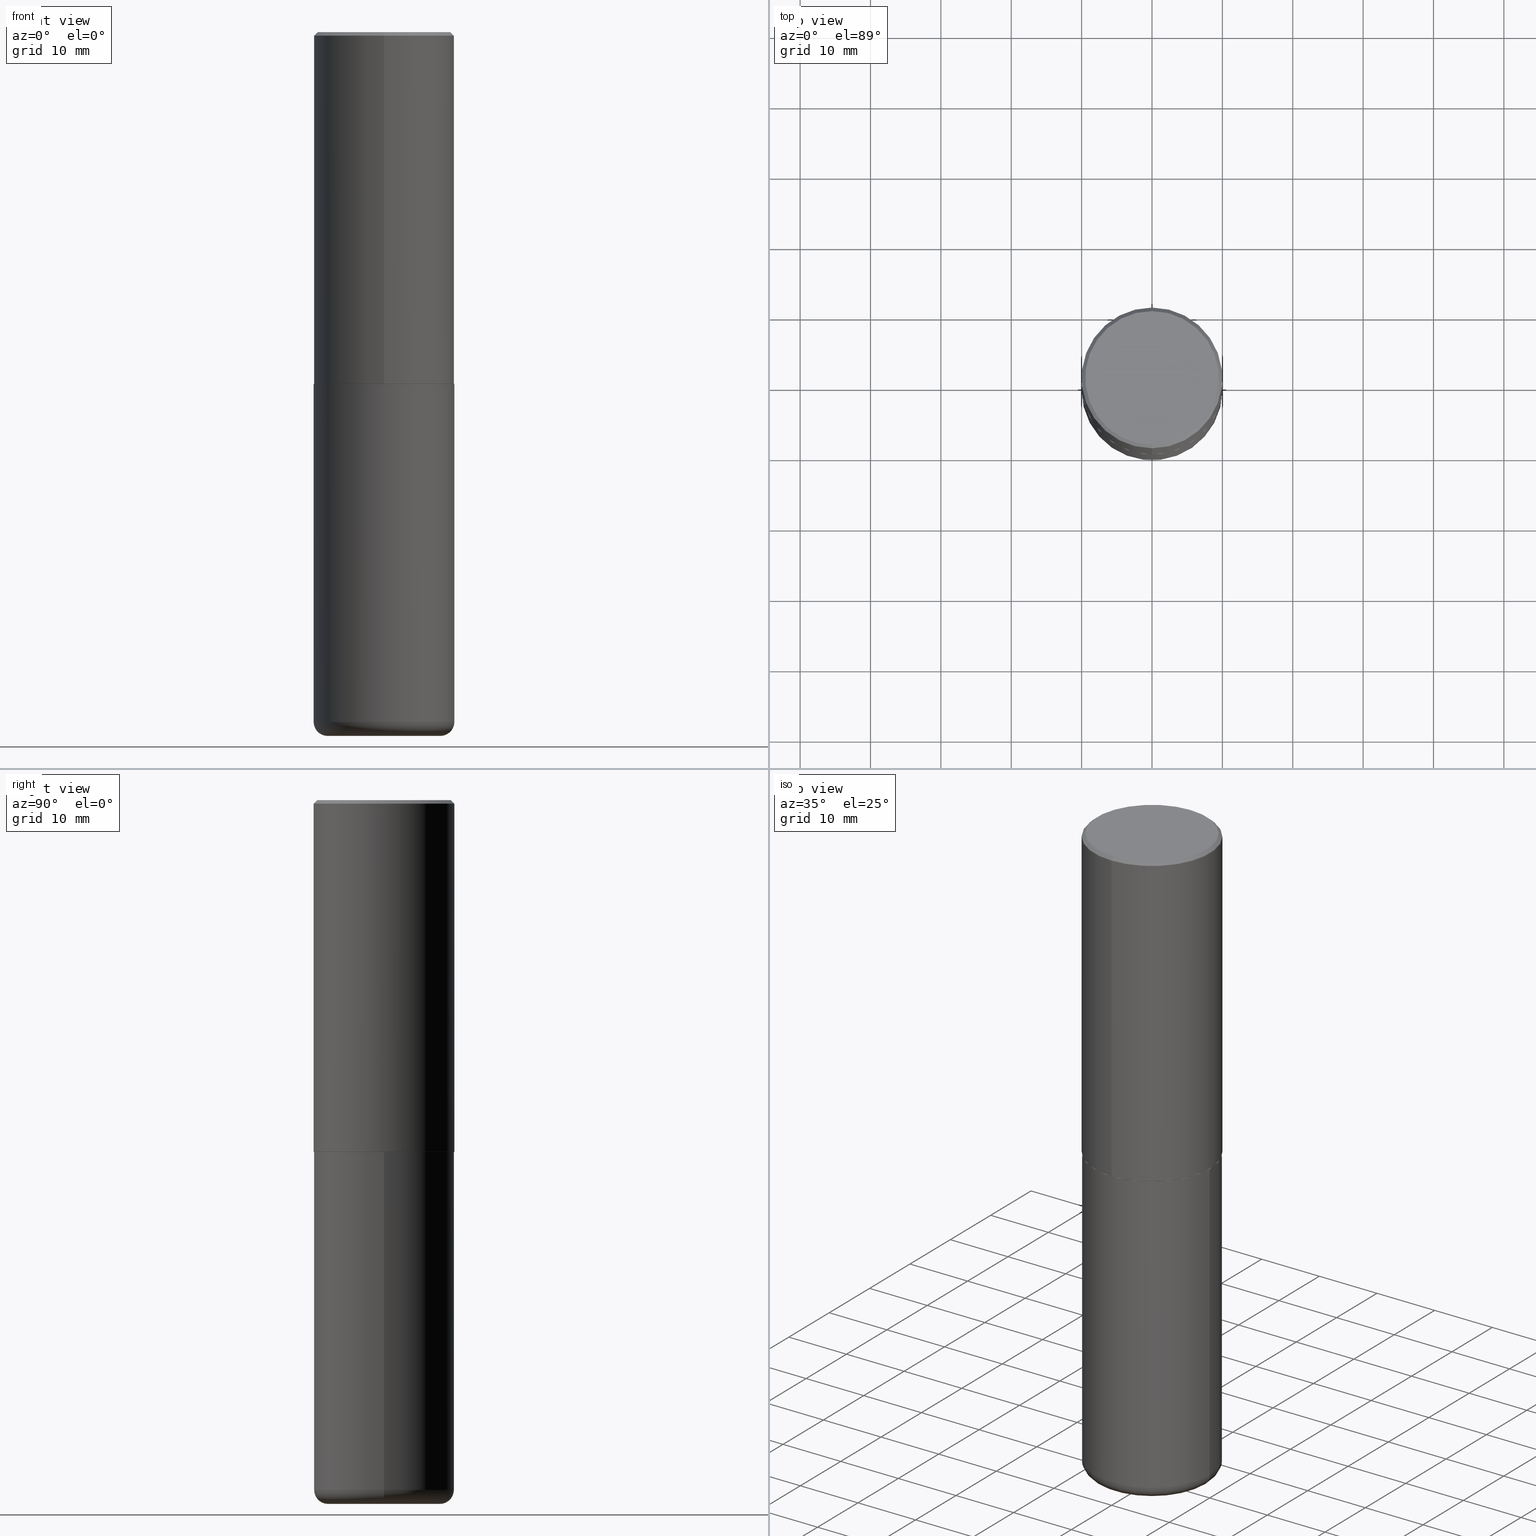
[diagram: canonical four-view strip — front | top / right | iso, engineering-drawing reading convention]
A machine part, canonical four-view strip (front | top / right | iso — engineering-drawing reading convention). The complete STEP part file that produces these views, byte-faithful:
ISO-10303-21;
HEADER;
FILE_DESCRIPTION (( 'STEP AP203' ),
    '1' );
FILE_NAME ('74806.STEP',
    '2024-05-02T19:19:54',
    ( '' ),
    ( '' ),
    'SwSTEP 2.0',
    'SolidWorks 2023',
    '' );
FILE_SCHEMA (( 'CONFIG_CONTROL_DESIGN' ));
ENDSEC;

DATA;
#1 = AXIS2_PLACEMENT_3D ( 'NONE', #147, #344, #334 ) ;
#2 = AXIS2_PLACEMENT_3D ( 'NONE', #55, #203, #124 ) ;
#3 = ORIENTED_EDGE ( 'NONE', *, *, #69, .T. ) ;
#4 = ADVANCED_FACE ( 'NONE', ( #289 ), #265, .T. ) ;
#5 = EDGE_LOOP ( 'NONE', ( #179, #266, #99, #355 ) ) ;
#6 = CLOSED_SHELL ( 'NONE', ( #103, #352, #92, #35, #201, #4, #136, #300 ) ) ;
#7 = ORIENTED_EDGE ( 'NONE', *, *, #269, .F. ) ;
#8 =( NAMED_UNIT ( * ) PLANE_ANGLE_UNIT ( ) SI_UNIT ( $, .RADIAN. ) );
#9 = VERTEX_POINT ( 'NONE', #418 ) ;
#10 = EDGE_CURVE ( 'NONE', #351, #43, #135, .T. ) ;
#11 = VERTEX_POINT ( 'NONE', #263 ) ;
#12 = DIRECTION ( 'NONE',  ( 2.447902336346030930E-29, -3.487996385144809360E-15, -1.000000000000000000 ) ) ;
#13 = CARTESIAN_POINT ( 'NONE',  ( -2.742209443527348687E-15, -0.3927000000000069324, -1.968499999999998584 ) ) ;
#14 = DIRECTION ( 'NONE',  ( -2.447902336346030930E-29, 3.487996385144809755E-15, 1.000000000000000000 ) ) ;
#15 = DIRECTION ( 'NONE',  ( -2.447902336346030930E-29, 3.487996385144809755E-15, 1.000000000000000000 ) ) ;
#16 = PLANE ( 'NONE',  #98 ) ;
#17 = PLANE ( 'NONE',  #359 ) ;
#18 = DIRECTION ( 'NONE',  ( -2.447902336346030930E-29, 3.487996385144809755E-15, 1.000000000000000000 ) ) ;
#19 = AXIS2_PLACEMENT_3D ( 'NONE', #342, #243, #49 ) ;
#20 = DIRECTION ( 'NONE',  ( 2.438088387897960049E-29, -3.491481338843145188E-15, -1.000000000000000000 ) ) ;
#21 = DIRECTION ( 'NONE',  ( -6.982962677686265922E-15, -1.000000000000000000, 3.487996385144809360E-15 ) ) ;
#22 = COORDINATED_UNIVERSAL_TIME_OFFSET ( 5, 0, .BEHIND. ) ;
#23 = DIRECTION ( 'NONE',  ( -2.445468806185136597E-29, 3.491481338843145583E-15, 1.000000000000000000 ) ) ;
#24 = APPROVAL_STATUS ( 'not_yet_approved' ) ;
#25 = AXIS2_PLACEMENT_3D ( 'NONE', #343, #244, #80 ) ;
#26 = APPROVAL_DATE_TIME ( #286, #233 ) ;
#27 = APPLICATION_PROTOCOL_DEFINITION ( 'international standard', 'config_control_design', 1994, #356 ) ;
#28 = COORDINATED_UNIVERSAL_TIME_OFFSET ( 5, 0, .BEHIND. ) ;
#29 = VECTOR ( 'NONE', #195, 39.37007874015748143 ) ;
#30 = ORIENTED_EDGE ( 'NONE', *, *, #229, .F. ) ;
#31 = EDGE_CURVE ( 'NONE', #399, #339, #192, .T. ) ;
#32 = ORIENTED_EDGE ( 'NONE', *, *, #254, .T. ) ;
#33 = AXIS2_PLACEMENT_3D ( 'NONE', #304, #108, #171 ) ;
#34 = LOCAL_TIME ( 15, 19, 54.00000000000000000, #22 ) ;
#35 = ADVANCED_FACE ( 'NONE', ( #182 ), #62, .T. ) ;
#36 = AXIS2_PLACEMENT_3D ( 'NONE', #38, #252, #235 ) ;
#37 = CARTESIAN_POINT ( 'NONE',  ( 4.895804672692082949E-31, -6.975992770289649092E-17, -0.02000000000000008715 ) ) ;
#38 = CARTESIAN_POINT ( 'NONE',  ( 4.895804672692082949E-31, -6.975992770289649092E-17, -0.02000000000000008715 ) ) ;
#39 = DIRECTION ( 'NONE',  ( 1.000000000000000000, -6.982962677686265922E-15, 4.876176775795935793E-29 ) ) ;
#40 = VERTEX_POINT ( 'NONE', #409 ) ;
#41 = LOCAL_TIME ( 15, 19, 54.00000000000000000, #28 ) ;
#42 = DIRECTION ( 'NONE',  ( -4.851104656540950075E-15, -0.7071067811865479058, -0.7071067811865471286 ) ) ;
#43 = VERTEX_POINT ( 'NONE', #407 ) ;
#44 = AXIS2_PLACEMENT_3D ( 'NONE', #109, #401, #114 ) ;
#45 = APPLICATION_CONTEXT ( 'configuration controlled 3d designs of mechanical parts and assemblies' ) ;
#46 = EDGE_CURVE ( 'NONE', #40, #43, #216, .T. ) ;
#47 = ORIENTED_EDGE ( 'NONE', *, *, #122, .T. ) ;
#48 = DIRECTION ( 'NONE',  ( -1.000000000000000000, 7.105427357601001859E-15, 0.000000000000000000 ) ) ;
#49 = DIRECTION ( 'NONE',  ( 1.000000000000000000, -6.982962677686265922E-15, 4.876176775795935793E-29 ) ) ;
#50 = CARTESIAN_POINT ( 'NONE',  ( 0.000000000000000000, 0.000000000000000000, 0.000000000000000000 ) ) ;
#51 = VERTEX_POINT ( 'NONE', #88 ) ;
#52 = CARTESIAN_POINT ( 'NONE',  ( -0.3150000000000000577, -1.123297283201419171E-14, -3.858300000000000285 ) ) ;
#53 = ORIENTED_EDGE ( 'NONE', *, *, #322, .T. ) ;
#54 = EDGE_CURVE ( 'NONE', #339, #399, #199, .T. ) ;
#55 = CARTESIAN_POINT ( 'NONE',  ( -5.506038201652776757E-45, 7.845509626213831500E-31, 2.249288347782537153E-16 ) ) ;
#56 = CARTESIAN_POINT ( 'NONE',  ( 4.813905344975441835E-29, -6.872981015512731707E-15, -1.968500000000000139 ) ) ;
#57 = COORDINATED_UNIVERSAL_TIME_OFFSET ( 5, 0, .BEHIND. ) ;
#58 = PRODUCT_DEFINITION_SHAPE ( 'NONE', 'NONE',  #316 ) ;
#59 = APPLICATION_PROTOCOL_DEFINITION ( 'international standard', 'config_control_design', 1994, #45 ) ;
#60 = DIRECTION ( 'NONE',  ( -2.445468806185136597E-29, 3.491481338843145583E-15, 1.000000000000000000 ) ) ;
#61 = MECHANICAL_CONTEXT ( 'NONE', #356, 'mechanical' ) ;
#62 = CONICAL_SURFACE ( 'NONE', #36, 0.3937000000000001054, 0.7853981633974453924 ) ;
#63 = EDGE_CURVE ( 'NONE', #260, #51, #276, .T. ) ;
#64 = VECTOR ( 'NONE', #145, 39.37007874015748143 ) ;
#65 = CALENDAR_DATE ( 2024, 2, 5 ) ;
#66 = PERSON_AND_ORGANIZATION ( #377, #198 ) ;
#67 = EDGE_LOOP ( 'NONE', ( #210, #143 ) ) ;
#68 = ORIENTED_EDGE ( 'NONE', *, *, #46, .F. ) ;
#69 = EDGE_CURVE ( 'NONE', #144, #364, #275, .T. ) ;
#70 = AXIS2_PLACEMENT_3D ( 'NONE', #100, #142, #270 ) ;
#71 = MANIFOLD_SOLID_BREP ( 'Body-Move/Copy2[1]', #328 ) ;
#72 = ORIENTED_EDGE ( 'NONE', *, *, #354, .T. ) ;
#73 = EDGE_CURVE ( 'NONE', #404, #9, #311, .T. ) ;
#74 = CIRCLE ( 'NONE', #174, 0.3937000000000002720 ) ;
#75 = AXIS2_PLACEMENT_3D ( 'NONE', #56, #23, #120 ) ;
#76 = EDGE_LOOP ( 'NONE', ( #336, #166, #47, #30 ) ) ;
#77 = DIRECTION ( 'NONE',  ( -2.447902336346030930E-29, 3.487996385144809755E-15, 1.000000000000000000 ) ) ;
#78 = LINE ( 'NONE', #13, #129 ) ;
#79 = EDGE_LOOP ( 'NONE', ( #333, #140 ) ) ;
#80 = DIRECTION ( 'NONE',  ( 1.000000000000000000, -6.982962677686267499E-15, 0.000000000000000000 ) ) ;
#81 = VECTOR ( 'NONE', #183, 39.37007874015748143 ) ;
#82 = EDGE_LOOP ( 'NONE', ( #238, #226, #337, #290 ) ) ;
#83 = DIRECTION ( 'NONE',  ( 1.000000000000000000, -6.982962677686267499E-15, 0.000000000000000000 ) ) ;
#84 = CARTESIAN_POINT ( 'NONE',  ( 4.895804672692082949E-31, -6.975992770289649092E-17, -0.02000000000000008715 ) ) ;
#85 = CARTESIAN_POINT ( 'NONE',  ( 2.790301323329961110E-15, 0.3926999999999931101, -1.968500000000001471 ) ) ;
#86 = CARTESIAN_POINT ( 'NONE',  ( 0.3150000000000000577, -1.594559527449663995E-14, -3.937000000000000721 ) ) ;
#87 = FACE_OUTER_BOUND ( 'NONE', #82, .T. ) ;
#88 = CARTESIAN_POINT ( 'NONE',  ( -0.3937000000000001054, -1.067377569897099292E-14, -3.858300000000000285 ) ) ;
#89 = SECURITY_CLASSIFICATION_LEVEL ( 'unclassified' ) ;
#90 = APPROVAL ( #189, 'UNSPECIFIED' ) ;
#91 = DIRECTION ( 'NONE',  ( -6.982962677686265922E-15, -1.000000000000000000, 3.487996385144809360E-15 ) ) ;
#92 = ADVANCED_FACE ( 'NONE', ( #190 ), #335, .T. ) ;
#93 = APPROVAL_ROLE ( '' ) ;
#94 = CIRCLE ( 'NONE', #44, 0.3937000000000002720 ) ;
#95 = AXIS2_PLACEMENT_3D ( 'NONE', #208, #60, #282 ) ;
#96 = CALENDAR_DATE ( 2024, 2, 5 ) ;
#97 = DIRECTION ( 'NONE',  ( -2.447902336346030930E-29, 3.487996385144809755E-15, 1.000000000000000000 ) ) ;
#98 = AXIS2_PLACEMENT_3D ( 'NONE', #169, #12, #141 ) ;
#99 = ORIENTED_EDGE ( 'NONE', *, *, #292, .T. ) ;
#100 = CARTESIAN_POINT ( 'NONE',  ( 4.813905344975441835E-29, -6.872981015512731707E-15, -1.968500000000000139 ) ) ;
#101 = EDGE_LOOP ( 'NONE', ( #361, #384 ) ) ;
#102 =( GEOMETRIC_REPRESENTATION_CONTEXT ( 3 ) GLOBAL_UNCERTAINTY_ASSIGNED_CONTEXT ( ( #115 ) ) GLOBAL_UNIT_ASSIGNED_CONTEXT ( ( #236, #8, #218 ) ) REPRESENTATION_CONTEXT ( 'NONE', 'WORKASPACE' ) );
#103 = ADVANCED_FACE ( 'NONE', ( #273 ), #119, .T. ) ;
#104 = LINE ( 'NONE', #297, #134 ) ;
#105 = ORIENTED_EDGE ( 'NONE', *, *, #54, .F. ) ;
#106 = EDGE_LOOP ( 'NONE', ( #133, #202, #306, #32 ) ) ;
#107 = LINE ( 'NONE', #303, #197 ) ;
#108 = DIRECTION ( 'NONE',  ( -2.447902336346030930E-29, 3.487996385144809755E-15, 1.000000000000000000 ) ) ;
#109 = CARTESIAN_POINT ( 'NONE',  ( 4.816247846760815671E-29, -6.862632887772413316E-15, -1.967500000000000027 ) ) ;
#110 = EDGE_LOOP ( 'NONE', ( #237, #277, #173, #268 ) ) ;
#111 = AXIS2_PLACEMENT_3D ( 'NONE', #372, #20, #152 ) ;
#112 = CARTESIAN_POINT ( 'NONE',  ( 9.435352294904112142E-29, -1.347118244965850850E-14, -3.858300000000000285 ) ) ;
#113 = CARTESIAN_POINT ( 'NONE',  ( -2.632373081744936315E-15, -0.3736999999999999211, 1.528393083906868747E-15 ) ) ;
#114 = DIRECTION ( 'NONE',  ( -6.982962677686265922E-15, -1.000000000000000000, 3.469453890861393601E-15 ) ) ;
#115 = UNCERTAINTY_MEASURE_WITH_UNIT (LENGTH_MEASURE( 1.000000000000000082E-05 ), #236, 'distance_accuracy_value', 'NONE');
#116 = CARTESIAN_POINT ( 'NONE',  ( -2.700978061722651647E-15, -0.3937000000000001609, -0.01999999999999870978 ) ) ;
#117 = CC_DESIGN_SECURITY_CLASSIFICATION ( #362, ( #248 ) ) ;
#118 = CYLINDRICAL_SURFACE ( 'NONE', #19, 0.3937000000000000499 ) ;
#119 = CONICAL_SURFACE ( 'NONE', #33, 0.3926999999999999935, 0.7853981633975507526 ) ;
#120 = DIRECTION ( 'NONE',  ( 1.000000000000000000, -6.982962677686265133E-15, 0.000000000000000000 ) ) ;
#121 = PERSON_AND_ORGANIZATION ( #377, #198 ) ;
#122 = EDGE_CURVE ( 'NONE', #9, #11, #78, .T. ) ;
#123 = APPROVAL_ROLE ( '' ) ;
#124 = DIRECTION ( 'NONE',  ( -6.982962677686265133E-15, -1.000000000000000000, 3.487996385144809755E-15 ) ) ;
#125 = DATE_AND_TIME ( #164, #34 ) ;
#126 = AXIS2_PLACEMENT_3D ( 'NONE', #412, #291, #227 ) ;
#127 = CC_DESIGN_APPROVAL ( #233, ( #316 ) ) ;
#128 = DIRECTION ( 'NONE',  ( -6.982962677686265922E-15, -1.000000000000000000, 3.469453890861393601E-15 ) ) ;
#129 = VECTOR ( 'NONE', #299, 39.37007874015748143 ) ;
#130 = FACE_OUTER_BOUND ( 'NONE', #176, .T. ) ;
#131 = APPROVAL_DATE_TIME ( #379, #90 ) ;
#132 = ADVANCED_FACE ( 'NONE', ( #245 ), #118, .T. ) ;
#133 = ORIENTED_EDGE ( 'NONE', *, *, #406, .F. ) ;
#134 = VECTOR ( 'NONE', #175, 39.37007874015748143 ) ;
#135 = LINE ( 'NONE', #232, #29 ) ;
#136 = ADVANCED_FACE ( 'NONE', ( #309 ), #17, .F. ) ;
#137 = ORIENTED_EDGE ( 'NONE', *, *, #269, .T. ) ;
#138 = ADVANCED_FACE ( 'NONE', ( #148 ), #402, .T. ) ;
#139 = AXIS2_PLACEMENT_3D ( 'NONE', #302, #15, #206 ) ;
#140 = ORIENTED_EDGE ( 'NONE', *, *, #73, .F. ) ;
#141 = DIRECTION ( 'NONE',  ( 6.982962677686265922E-15, 1.000000000000000000, -3.487996385144809360E-15 ) ) ;
#142 = DIRECTION ( 'NONE',  ( -2.445468806185136597E-29, 3.491481338843145583E-15, 1.000000000000000000 ) ) ;
#143 = ORIENTED_EDGE ( 'NONE', *, *, #54, .T. ) ;
#144 = VERTEX_POINT ( 'NONE', #86 ) ;
#145 = DIRECTION ( 'NONE',  ( -2.447902336346030930E-29, 3.487996385144809360E-15, 1.000000000000000000 ) ) ;
#146 = ADVANCED_FACE ( 'NONE', ( #305 ), #368, .T. ) ;
#147 = CARTESIAN_POINT ( 'NONE',  ( 9.627810689950884790E-29, -1.374596203102546657E-14, -3.937000000000000721 ) ) ;
#148 = FACE_OUTER_BOUND ( 'NONE', #370, .T. ) ;
#149 = CIRCLE ( 'NONE', #382, 0.07870000000000017260 ) ;
#150 = DIRECTION ( 'NONE',  ( -2.445468806185136877E-29, 3.491481338843145188E-15, 1.000000000000000000 ) ) ;
#151 = CIRCLE ( 'NONE', #25, 0.3937000000000000499 ) ;
#152 = DIRECTION ( 'NONE',  ( -1.000000000000000000, 6.982962677686265922E-15, -4.876176775795935793E-29 ) ) ;
#153 = DIRECTION ( 'NONE',  ( -2.447902336346030930E-29, 3.487996385144809360E-15, 1.000000000000000000 ) ) ;
#154 = DIRECTION ( 'NONE',  ( -2.447902336346030930E-29, 3.487996385144809755E-15, 1.000000000000000000 ) ) ;
#155 = CARTESIAN_POINT ( 'NONE',  ( 4.818695749097161561E-29, -6.866120884157558352E-15, -1.968500000000000139 ) ) ;
#156 = PRODUCT ( '74806', '74806', '', ( #61 ) ) ;
#157 = PERSON_AND_ORGANIZATION ( #377, #198 ) ;
#158 = EDGE_CURVE ( 'NONE', #364, #144, #230, .T. ) ;
#159 = APPROVAL_PERSON_ORGANIZATION ( #313, #219, #93 ) ;
#160 = AXIS2_PLACEMENT_3D ( 'NONE', #225, #320, #163 ) ;
#161 = PERSON_AND_ORGANIZATION_ROLE ( 'creator' ) ;
#162 = DIRECTION ( 'NONE',  ( -2.447902336346030930E-29, 3.487996385144809360E-15, 1.000000000000000000 ) ) ;
#163 = DIRECTION ( 'NONE',  ( -1.000000000000000000, 6.982962677686265922E-15, -4.876176775795935793E-29 ) ) ;
#164 = CALENDAR_DATE ( 2024, 2, 5 ) ;
#165 = PLANE ( 'NONE',  #160 ) ;
#166 = ORIENTED_EDGE ( 'NONE', *, *, #73, .T. ) ;
#167 = AXIS2_PLACEMENT_3D ( 'NONE', #112, #366, #272 ) ;
#168 = VECTOR ( 'NONE', #42, 39.37007874015748143 ) ;
#169 = CARTESIAN_POINT ( 'NONE',  ( 2.609533152651356620E-15, 0.3736999999999999211, -1.190999831739488445E-15 ) ) ;
#170 = ORIENTED_EDGE ( 'NONE', *, *, #158, .F. ) ;
#171 = DIRECTION ( 'NONE',  ( -6.982962677686265133E-15, -1.000000000000000000, 3.478288761986584267E-15 ) ) ;
#172 = CC_DESIGN_APPROVAL ( #90, ( #362 ) ) ;
#173 = ORIENTED_EDGE ( 'NONE', *, *, #185, .F. ) ;
#174 = AXIS2_PLACEMENT_3D ( 'NONE', #310, #18, #128 ) ;
#175 = DIRECTION ( 'NONE',  ( -2.445468806185136877E-29, 3.491481338843145188E-15, 1.000000000000000000 ) ) ;
#176 = EDGE_LOOP ( 'NONE', ( #68, #207, #53, #315 ) ) ;
#177 = ORIENTED_EDGE ( 'NONE', *, *, #354, .F. ) ;
#178 = FACE_OUTER_BOUND ( 'NONE', #101, .T. ) ;
#179 = ORIENTED_EDGE ( 'NONE', *, *, #280, .F. ) ;
#180 = CC_DESIGN_PERSON_AND_ORGANIZATION_ASSIGNMENT ( #186, #387, ( #316 ) ) ;
#181 = CARTESIAN_POINT ( 'NONE',  ( -2.749192406205084400E-15, -0.3937000000000002164, 1.373224176831512262E-15 ) ) ;
#182 = FACE_OUTER_BOUND ( 'NONE', #106, .T. ) ;
#183 = DIRECTION ( 'NONE',  ( 5.024295867788576727E-15, 0.7071067811866224018, 0.7071067811864726327 ) ) ;
#184 = DATE_TIME_ROLE ( 'creation_date' ) ;
#185 = EDGE_CURVE ( 'NONE', #11, #40, #94, .T. ) ;
#186 = PERSON_AND_ORGANIZATION ( #377, #198 ) ;
#187 = AXIS2_PLACEMENT_3D ( 'NONE', #395, #365, #215 ) ;
#188 = AXIS2_PLACEMENT_3D ( 'NONE', #50, #14, #274 ) ;
#189 = APPROVAL_STATUS ( 'not_yet_approved' ) ;
#190 = FACE_OUTER_BOUND ( 'NONE', #5, .T. ) ;
#191 = CARTESIAN_POINT ( 'NONE',  ( 4.818695749097161561E-29, -6.866120884157558352E-15, -1.968500000000000139 ) ) ;
#192 = CIRCLE ( 'NONE', #70, 0.3937000000000000499 ) ;
#193 = ORIENTED_EDGE ( 'NONE', *, *, #400, .T. ) ;
#194 = ADVANCED_FACE ( 'NONE', ( #323 ), #165, .F. ) ;
#195 = DIRECTION ( 'NONE',  ( 4.937700262164533054E-15, 0.7071067811865430208, -0.7071067811865520136 ) ) ;
#196 = ORIENTED_EDGE ( 'NONE', *, *, #63, .T. ) ;
#197 = VECTOR ( 'NONE', #150, 39.37007874015748143 ) ;
#198 = ORGANIZATION ( 'UNSPECIFIED', 'UNSPECIFIED', '' ) ;
#199 = CIRCLE ( 'NONE', #75, 0.3937000000000000499 ) ;
#200 = EDGE_LOOP ( 'NONE', ( #347, #392, #72, #105 ) ) ;
#201 = ADVANCED_FACE ( 'NONE', ( #130 ), #211, .T. ) ;
#202 = ORIENTED_EDGE ( 'NONE', *, *, #284, .F. ) ;
#203 = DIRECTION ( 'NONE',  ( -2.447902336346030930E-29, 3.487996385144809755E-15, 1.000000000000000000 ) ) ;
#204 = CIRCLE ( 'NONE', #240, 0.3926999999999999935 ) ;
#205 = CYLINDRICAL_SURFACE ( 'NONE', #398, 0.3937000000000002164 ) ;
#206 = DIRECTION ( 'NONE',  ( -6.982962677686265133E-15, -1.000000000000000000, 3.478288761986584267E-15 ) ) ;
#207 = ORIENTED_EDGE ( 'NONE', *, *, #229, .T. ) ;
#208 = CARTESIAN_POINT ( 'NONE',  ( 9.627810689950884790E-29, -1.374596203102546657E-14, -3.937000000000000721 ) ) ;
#209 = CARTESIAN_POINT ( 'NONE',  ( -0.3150000000000000577, -1.109076405617607056E-14, -3.937000000000000721 ) ) ;
#210 = ORIENTED_EDGE ( 'NONE', *, *, #31, .T. ) ;
#211 = CYLINDRICAL_SURFACE ( 'NONE', #188, 0.3937000000000002164 ) ;
#212 = DIRECTION ( 'NONE',  ( -6.982962677686265133E-15, -1.000000000000000000, 3.487996385144809755E-15 ) ) ;
#213 = APPROVAL_PERSON_ORGANIZATION ( #221, #90, #385 ) ;
#214 = CARTESIAN_POINT ( 'NONE',  ( 0.000000000000000000, 0.000000000000000000, 0.000000000000000000 ) ) ;
#215 = DIRECTION ( 'NONE',  ( 1.000000000000000000, -6.982962677686264344E-15, 4.883557194083112340E-29 ) ) ;
#216 = LINE ( 'NONE', #247, #222 ) ;
#217 = SHAPE_DEFINITION_REPRESENTATION ( #58, #228 ) ;
#218 =( NAMED_UNIT ( * ) SI_UNIT ( $, .STERADIAN. ) SOLID_ANGLE_UNIT ( ) );
#219 = APPROVAL ( #24, 'UNSPECIFIED' ) ;
#220 = PRODUCT_RELATED_PRODUCT_CATEGORY ( 'detail', '', ( #156 ) ) ;
#221 = PERSON_AND_ORGANIZATION ( #377, #198 ) ;
#222 = VECTOR ( 'NONE', #153, 39.37007874015748143 ) ;
#223 = AXIS2_PLACEMENT_3D ( 'NONE', #321, #413, #317 ) ;
#224 = CIRCLE ( 'NONE', #2, 0.3736999999999999211 ) ;
#225 = CARTESIAN_POINT ( 'NONE',  ( 4.813905344975441835E-29, -6.872981015512731707E-15, -1.968500000000000139 ) ) ;
#226 = ORIENTED_EDGE ( 'NONE', *, *, #46, .T. ) ;
#227 = DIRECTION ( 'NONE',  ( -6.982962677686265133E-15, -1.000000000000000000, 3.478288761986584267E-15 ) ) ;
#228 = ADVANCED_BREP_SHAPE_REPRESENTATION ( '74806', ( #71, #358, #223 ), #102 ) ;
#229 = EDGE_CURVE ( 'NONE', #40, #11, #74, .T. ) ;
#230 = CIRCLE ( 'NONE', #1, 0.3150000000000000577 ) ;
#231 = ORIENTED_EDGE ( 'NONE', *, *, #376, .F. ) ;
#232 = CARTESIAN_POINT ( 'NONE',  ( 2.749192406205084005E-15, 0.3937000000000000499, -0.02000000000000146105 ) ) ;
#233 = APPROVAL ( #349, 'UNSPECIFIED' ) ;
#234 = LOCAL_TIME ( 15, 19, 54.00000000000000000, #57 ) ;
#235 = DIRECTION ( 'NONE',  ( 6.982962677686265133E-15, 1.000000000000000000, -3.491137977679279029E-15 ) ) ;
#236 =( CONVERSION_BASED_UNIT ( 'INCH', #391 ) LENGTH_UNIT ( ) NAMED_UNIT ( #417 ) );
#237 = ORIENTED_EDGE ( 'NONE', *, *, #259, .T. ) ;
#238 = ORIENTED_EDGE ( 'NONE', *, *, #185, .T. ) ;
#239 = LINE ( 'NONE', #373, #168 ) ;
#240 = AXIS2_PLACEMENT_3D ( 'NONE', #191, #258, #324 ) ;
#241 = AXIS2_PLACEMENT_3D ( 'NONE', #250, #378, #83 ) ;
#242 = CARTESIAN_POINT ( 'NONE',  ( 0.000000000000000000, 0.000000000000000000, 0.000000000000000000 ) ) ;
#243 = DIRECTION ( 'NONE',  ( -2.445468806185136597E-29, 3.491481338843145583E-15, 1.000000000000000000 ) ) ;
#244 = DIRECTION ( 'NONE',  ( -2.445468806185136597E-29, 3.491481338843145583E-15, 1.000000000000000000 ) ) ;
#245 = FACE_OUTER_BOUND ( 'NONE', #200, .T. ) ;
#246 =( LENGTH_UNIT ( ) NAMED_UNIT ( * ) SI_UNIT ( $, .METRE. ) );
#247 = CARTESIAN_POINT ( 'NONE',  ( 2.797406750687515575E-15, 0.3937000000000002164, -1.373224176831512262E-15 ) ) ;
#248 = PRODUCT_DEFINITION_FORMATION_WITH_SPECIFIED_SOURCE ( 'ANY', '', #156, .NOT_KNOWN. ) ;
#249 = PERSON_AND_ORGANIZATION_ROLE ( 'design_owner' ) ;
#250 = CARTESIAN_POINT ( 'NONE',  ( 9.435352294904112142E-29, -1.347118244965850850E-14, -3.858300000000000285 ) ) ;
#251 = DATE_TIME_ROLE ( 'classification_date' ) ;
#252 = DIRECTION ( 'NONE',  ( 2.447902336346030930E-29, -3.487996385144809755E-15, -1.000000000000000000 ) ) ;
#253 = CALENDAR_DATE ( 2024, 2, 5 ) ;
#254 = EDGE_CURVE ( 'NONE', #43, #288, #408, .T. ) ;
#255 = ORIENTED_EDGE ( 'NONE', *, *, #325, .F. ) ;
#256 = DATE_AND_TIME ( #65, #264 ) ;
#257 = PERSON_AND_ORGANIZATION_ROLE ( 'design_supplier' ) ;
#258 = DIRECTION ( 'NONE',  ( -2.447902336346030930E-29, 3.487996385144809755E-15, 1.000000000000000000 ) ) ;
#259 = EDGE_CURVE ( 'NONE', #9, #404, #204, .T. ) ;
#260 = VERTEX_POINT ( 'NONE', #388 ) ;
#261 = TOROIDAL_SURFACE ( 'NONE', #167, 0.3150000000000000577, 0.07870000000000021423 ) ;
#262 = CC_DESIGN_PERSON_AND_ORGANIZATION_ASSIGNMENT ( #121, #257, ( #248 ) ) ;
#263 = CARTESIAN_POINT ( 'NONE',  ( -2.749192406205036674E-15, -0.3937000000000070998, -1.967499999999998694 ) ) ;
#264 = LOCAL_TIME ( 15, 19, 54.00000000000000000, #416 ) ;
#265 = CONICAL_SURFACE ( 'NONE', #139, 0.3926999999999999935, 0.7853981633975507526 ) ;
#266 = ORIENTED_EDGE ( 'NONE', *, *, #406, .T. ) ;
#267 = FACE_OUTER_BOUND ( 'NONE', #396, .T. ) ;
#268 = ORIENTED_EDGE ( 'NONE', *, *, #122, .F. ) ;
#269 = EDGE_CURVE ( 'NONE', #144, #260, #350, .T. ) ;
#270 = DIRECTION ( 'NONE',  ( 1.000000000000000000, -6.982962677686265133E-15, 0.000000000000000000 ) ) ;
#271 = VERTEX_POINT ( 'NONE', #113 ) ;
#272 = DIRECTION ( 'NONE',  ( 1.000000000000000000, -6.982962677686264344E-15, 4.883557194083112340E-29 ) ) ;
#273 = FACE_OUTER_BOUND ( 'NONE', #110, .T. ) ;
#274 = DIRECTION ( 'NONE',  ( -6.982962677686265922E-15, -1.000000000000000000, 3.487996385144809360E-15 ) ) ;
#275 = CIRCLE ( 'NONE', #95, 0.3150000000000000577 ) ;
#276 = CIRCLE ( 'NONE', #241, 0.3937000000000000499 ) ;
#277 = ORIENTED_EDGE ( 'NONE', *, *, #346, .T. ) ;
#278 = CARTESIAN_POINT ( 'NONE',  ( 0.3937000000000000499, -9.622173421717814924E-15, -1.968500000000000139 ) ) ;
#279 = FACE_OUTER_BOUND ( 'NONE', #327, .T. ) ;
#280 = EDGE_CURVE ( 'NONE', #271, #351, #224, .T. ) ;
#281 = AXIS2_PLACEMENT_3D ( 'NONE', #386, #97, #353 ) ;
#282 = DIRECTION ( 'NONE',  ( 1.000000000000000000, -6.982962677686267499E-15, 0.000000000000000000 ) ) ;
#283 = CALENDAR_DATE ( 2024, 2, 5 ) ;
#284 = EDGE_CURVE ( 'NONE', #351, #271, #293, .T. ) ;
#285 = PERSON_AND_ORGANIZATION_ROLE ( 'classification_officer' ) ;
#286 = DATE_AND_TIME ( #283, #41 ) ;
#287 = LOCAL_TIME ( 15, 19, 54.00000000000000000, #345 ) ;
#288 = VERTEX_POINT ( 'NONE', #116 ) ;
#289 = FACE_OUTER_BOUND ( 'NONE', #76, .T. ) ;
#290 = ORIENTED_EDGE ( 'NONE', *, *, #322, .F. ) ;
#291 = DIRECTION ( 'NONE',  ( -2.447902336346030930E-29, 3.487996385144809755E-15, 1.000000000000000000 ) ) ;
#292 = EDGE_CURVE ( 'NONE', #288, #43, #326, .T. ) ;
#293 = CIRCLE ( 'NONE', #296, 0.3736999999999999211 ) ;
#294 = EDGE_LOOP ( 'NONE', ( #3, #360, #298, #7 ) ) ;
#295 = CC_DESIGN_DATE_AND_TIME_ASSIGNMENT ( #256, #251, ( #362 ) ) ;
#296 = AXIS2_PLACEMENT_3D ( 'NONE', #374, #393, #212 ) ;
#297 = CARTESIAN_POINT ( 'NONE',  ( 0.3937000000000000499, -2.749192406205083217E-15, 1.919750796630860172E-29 ) ) ;
#298 = ORIENTED_EDGE ( 'NONE', *, *, #63, .F. ) ;
#299 = DIRECTION ( 'NONE',  ( -4.937700262165053702E-15, -0.7071067811866175168, 0.7071067811864775177 ) ) ;
#300 = ADVANCED_FACE ( 'NONE', ( #178 ), #16, .F. ) ;
#301 = ORIENTED_EDGE ( 'NONE', *, *, #31, .F. ) ;
#302 = CARTESIAN_POINT ( 'NONE',  ( 4.818695749097161561E-29, -6.866120884157558352E-15, -1.968500000000000139 ) ) ;
#303 = CARTESIAN_POINT ( 'NONE',  ( -0.3937000000000000499, 2.797406750687514786E-15, -1.936584745033356735E-29 ) ) ;
#304 = CARTESIAN_POINT ( 'NONE',  ( 4.818695749097161561E-29, -6.866120884157558352E-15, -1.968500000000000139 ) ) ;
#305 = FACE_OUTER_BOUND ( 'NONE', #294, .T. ) ;
#306 = ORIENTED_EDGE ( 'NONE', *, *, #10, .T. ) ;
#307 = DIRECTION ( 'NONE',  ( 7.105427357601001859E-15, 1.000000000000000000, -3.491481338843145583E-15 ) ) ;
#308 = ADVANCED_FACE ( 'NONE', ( #279 ), #341, .T. ) ;
#309 = FACE_OUTER_BOUND ( 'NONE', #79, .T. ) ;
#310 = CARTESIAN_POINT ( 'NONE',  ( 4.816247846760815671E-29, -6.862632887772413316E-15, -1.967500000000000027 ) ) ;
#311 = CIRCLE ( 'NONE', #126, 0.3926999999999999935 ) ;
#312 = LINE ( 'NONE', #85, #81 ) ;
#313 = PERSON_AND_ORGANIZATION ( #377, #198 ) ;
#314 = DESIGN_CONTEXT ( 'detailed design', #45, 'design' ) ;
#315 = ORIENTED_EDGE ( 'NONE', *, *, #254, .F. ) ;
#316 = PRODUCT_DEFINITION ( 'UNKNOWN', '', #248, #314 ) ;
#317 = DIRECTION ( 'NONE',  ( 1.000000000000000000, 0.000000000000000000, 0.000000000000000000 ) ) ;
#318 = AXIS2_PLACEMENT_3D ( 'NONE', #37, #331, #394 ) ;
#319 = DIRECTION ( 'NONE',  ( -6.982962677686266711E-15, -1.000000000000000000, 3.491481338843145583E-15 ) ) ;
#320 = DIRECTION ( 'NONE',  ( 2.438088387897960049E-29, -3.491481338843145188E-15, -1.000000000000000000 ) ) ;
#321 = CARTESIAN_POINT ( 'NONE',  ( 0.000000000000000000, 0.000000000000000000, 0.000000000000000000 ) ) ;
#322 = EDGE_CURVE ( 'NONE', #11, #288, #332, .T. ) ;
#323 = FACE_OUTER_BOUND ( 'NONE', #67, .T. ) ;
#324 = DIRECTION ( 'NONE',  ( -6.982962677686265133E-15, -1.000000000000000000, 3.478288761986584267E-15 ) ) ;
#325 = EDGE_CURVE ( 'NONE', #51, #260, #151, .T. ) ;
#326 = CIRCLE ( 'NONE', #369, 0.3937000000000001054 ) ;
#327 = EDGE_LOOP ( 'NONE', ( #196, #193, #301, #177 ) ) ;
#328 = CLOSED_SHELL ( 'NONE', ( #308, #146, #194, #132, #330, #138 ) ) ;
#329 = AXIS2_PLACEMENT_3D ( 'NONE', #403, #319, #410 ) ;
#330 = ADVANCED_FACE ( 'NONE', ( #267 ), #261, .T. ) ;
#331 = DIRECTION ( 'NONE',  ( 2.447902336346030930E-29, -3.487996385144809755E-15, -1.000000000000000000 ) ) ;
#332 = LINE ( 'NONE', #181, #64 ) ;
#333 = ORIENTED_EDGE ( 'NONE', *, *, #259, .F. ) ;
#334 = DIRECTION ( 'NONE',  ( 1.000000000000000000, -6.982962677686267499E-15, 0.000000000000000000 ) ) ;
#335 = CONICAL_SURFACE ( 'NONE', #318, 0.3937000000000001054, 0.7853981633974453924 ) ;
#336 = ORIENTED_EDGE ( 'NONE', *, *, #346, .F. ) ;
#337 = ORIENTED_EDGE ( 'NONE', *, *, #292, .F. ) ;
#338 = CARTESIAN_POINT ( 'NONE',  ( -0.3937000000000000499, -7.374674981898105316E-15, -1.968500000000000139 ) ) ;
#339 = VERTEX_POINT ( 'NONE', #338 ) ;
#340 = CC_DESIGN_DATE_AND_TIME_ASSIGNMENT ( #381, #184, ( #316 ) ) ;
#341 = CYLINDRICAL_SURFACE ( 'NONE', #348, 0.3937000000000000499 ) ;
#342 = CARTESIAN_POINT ( 'NONE',  ( 0.000000000000000000, 0.000000000000000000, 0.000000000000000000 ) ) ;
#343 = CARTESIAN_POINT ( 'NONE',  ( 9.435352294904112142E-29, -1.347118244965850850E-14, -3.858300000000000285 ) ) ;
#344 = DIRECTION ( 'NONE',  ( -2.445468806185136597E-29, 3.491481338843145583E-15, 1.000000000000000000 ) ) ;
#345 = COORDINATED_UNIVERSAL_TIME_OFFSET ( 5, 0, .BEHIND. ) ;
#346 = EDGE_CURVE ( 'NONE', #404, #40, #312, .T. ) ;
#347 = ORIENTED_EDGE ( 'NONE', *, *, #400, .F. ) ;
#348 = AXIS2_PLACEMENT_3D ( 'NONE', #214, #397, #39 ) ;
#349 = APPROVAL_STATUS ( 'not_yet_approved' ) ;
#350 = CIRCLE ( 'NONE', #329, 0.07870000000000017260 ) ;
#351 = VERTEX_POINT ( 'NONE', #363 ) ;
#352 = ADVANCED_FACE ( 'NONE', ( #87 ), #205, .T. ) ;
#353 = DIRECTION ( 'NONE',  ( -6.982962677686265133E-15, -1.000000000000000000, 3.491137977679279029E-15 ) ) ;
#354 = EDGE_CURVE ( 'NONE', #260, #399, #104, .T. ) ;
#355 = ORIENTED_EDGE ( 'NONE', *, *, #10, .F. ) ;
#356 = APPLICATION_CONTEXT ( 'configuration controlled 3d designs of mechanical parts and assemblies' ) ;
#357 = CC_DESIGN_APPROVAL ( #219, ( #248 ) ) ;
#358 = MANIFOLD_SOLID_BREP ( 'Body-Move/Copy2[2]', #6 ) ;
#359 = AXIS2_PLACEMENT_3D ( 'NONE', #155, #162, #91 ) ;
#360 = ORIENTED_EDGE ( 'NONE', *, *, #376, .T. ) ;
#361 = ORIENTED_EDGE ( 'NONE', *, *, #284, .T. ) ;
#362 = SECURITY_CLASSIFICATION ( '', '', #89 ) ;
#363 = CARTESIAN_POINT ( 'NONE',  ( 2.679362779428220707E-15, 0.3736999999999999211, -1.078535414350361218E-15 ) ) ;
#364 = VERTEX_POINT ( 'NONE', #209 ) ;
#365 = DIRECTION ( 'NONE',  ( -2.445468806185136597E-29, 3.491481338843145583E-15, 1.000000000000000000 ) ) ;
#366 = DIRECTION ( 'NONE',  ( -2.445468806185136597E-29, 3.491481338843145583E-15, 1.000000000000000000 ) ) ;
#367 = ORIENTED_EDGE ( 'NONE', *, *, #158, .T. ) ;
#368 = TOROIDAL_SURFACE ( 'NONE', #187, 0.3150000000000000577, 0.07870000000000021423 ) ;
#369 = AXIS2_PLACEMENT_3D ( 'NONE', #84, #77, #371 ) ;
#370 = EDGE_LOOP ( 'NONE', ( #380, #170 ) ) ;
#371 = DIRECTION ( 'NONE',  ( -6.982962677686265133E-15, -1.000000000000000000, 3.491137977679279029E-15 ) ) ;
#372 = CARTESIAN_POINT ( 'NONE',  ( 4.859318144497942927E-29, -2.057471476185479592E-14, -3.937000000000000277 ) ) ;
#373 = CARTESIAN_POINT ( 'NONE',  ( -2.700978061722651647E-15, -0.3937000000000001609, -0.01999999999999870978 ) ) ;
#374 = CARTESIAN_POINT ( 'NONE',  ( -5.506038201652776757E-45, 7.845509626213831500E-31, 2.249288347782537153E-16 ) ) ;
#375 = PERSON_AND_ORGANIZATION ( #377, #198 ) ;
#376 = EDGE_CURVE ( 'NONE', #364, #51, #149, .T. ) ;
#377 = PERSON ( 'UNSPECIFIED', 'UNSPECIFIED', 'UNSPECIFIED', ('UNSPECIFIED'), ('UNSPECIFIED'), ('UNSPECIFIED') ) ;
#378 = DIRECTION ( 'NONE',  ( -2.445468806185136597E-29, 3.491481338843145583E-15, 1.000000000000000000 ) ) ;
#379 = DATE_AND_TIME ( #96, #287 ) ;
#380 = ORIENTED_EDGE ( 'NONE', *, *, #69, .F. ) ;
#381 = DATE_AND_TIME ( #253, #234 ) ;
#382 = AXIS2_PLACEMENT_3D ( 'NONE', #52, #307, #48 ) ;
#383 = APPROVAL_PERSON_ORGANIZATION ( #375, #233, #123 ) ;
#384 = ORIENTED_EDGE ( 'NONE', *, *, #280, .T. ) ;
#385 = APPROVAL_ROLE ( '' ) ;
#386 = CARTESIAN_POINT ( 'NONE',  ( 4.895804672692082949E-31, -6.975992770289649092E-17, -0.02000000000000008715 ) ) ;
#387 = PERSON_AND_ORGANIZATION_ROLE ( 'creator' ) ;
#388 = CARTESIAN_POINT ( 'NONE',  ( 0.3937000000000001054, -1.622037485586359329E-14, -3.858300000000000285 ) ) ;
#389 = CC_DESIGN_PERSON_AND_ORGANIZATION_ASSIGNMENT ( #157, #285, ( #362 ) ) ;
#390 = CC_DESIGN_PERSON_AND_ORGANIZATION_ASSIGNMENT ( #66, #249, ( #156 ) ) ;
#391 = LENGTH_MEASURE_WITH_UNIT ( LENGTH_MEASURE( 0.02539999999999999897 ), #246 );
#392 = ORIENTED_EDGE ( 'NONE', *, *, #325, .T. ) ;
#393 = DIRECTION ( 'NONE',  ( -2.447902336346030930E-29, 3.487996385144809755E-15, 1.000000000000000000 ) ) ;
#394 = DIRECTION ( 'NONE',  ( 6.982962677686265133E-15, 1.000000000000000000, -3.491137977679279029E-15 ) ) ;
#395 = CARTESIAN_POINT ( 'NONE',  ( 9.435352294904112142E-29, -1.347118244965850850E-14, -3.858300000000000285 ) ) ;
#396 = EDGE_LOOP ( 'NONE', ( #231, #367, #137, #255 ) ) ;
#397 = DIRECTION ( 'NONE',  ( -2.445468806185136597E-29, 3.491481338843145583E-15, 1.000000000000000000 ) ) ;
#398 = AXIS2_PLACEMENT_3D ( 'NONE', #242, #154, #21 ) ;
#399 = VERTEX_POINT ( 'NONE', #278 ) ;
#400 = EDGE_CURVE ( 'NONE', #51, #339, #107, .T. ) ;
#401 = DIRECTION ( 'NONE',  ( -2.447902336346030930E-29, 3.487996385144809755E-15, 1.000000000000000000 ) ) ;
#402 = PLANE ( 'NONE',  #111 ) ;
#403 = CARTESIAN_POINT ( 'NONE',  ( 0.3150000000000000577, -1.567081569312968346E-14, -3.858300000000000285 ) ) ;
#404 = VERTEX_POINT ( 'NONE', #405 ) ;
#405 = CARTESIAN_POINT ( 'NONE',  ( 2.793854037008762403E-15, 0.3926999999999931101, -1.968500000000001471 ) ) ;
#406 = EDGE_CURVE ( 'NONE', #271, #288, #239, .T. ) ;
#407 = CARTESIAN_POINT ( 'NONE',  ( 2.749192406205084005E-15, 0.3937000000000000499, -0.02000000000000146105 ) ) ;
#408 = CIRCLE ( 'NONE', #281, 0.3937000000000001054 ) ;
#409 = CARTESIAN_POINT ( 'NONE',  ( 2.797406750687540424E-15, 0.3936999999999934441, -1.967500000000001359 ) ) ;
#410 = DIRECTION ( 'NONE',  ( 1.000000000000000000, -6.982962677686279332E-15, 0.000000000000000000 ) ) ;
#411 = PERSON_AND_ORGANIZATION ( #377, #198 ) ;
#412 = CARTESIAN_POINT ( 'NONE',  ( 4.818695749097161561E-29, -6.866120884157558352E-15, -1.968500000000000139 ) ) ;
#413 = DIRECTION ( 'NONE',  ( 0.000000000000000000, 0.000000000000000000, 1.000000000000000000 ) ) ;
#414 = CC_DESIGN_PERSON_AND_ORGANIZATION_ASSIGNMENT ( #411, #161, ( #248 ) ) ;
#415 = APPROVAL_DATE_TIME ( #125, #219 ) ;
#416 = COORDINATED_UNIVERSAL_TIME_OFFSET ( 5, 0, .BEHIND. ) ;
#417 = DIMENSIONAL_EXPONENTS ( 1.000000000000000000, 0.000000000000000000, 0.000000000000000000, 0.000000000000000000, 0.000000000000000000, 0.000000000000000000, 0.000000000000000000 ) ;
#418 = CARTESIAN_POINT ( 'NONE',  ( -2.742209443527348687E-15, -0.3927000000000069324, -1.968499999999998584 ) ) ;
ENDSEC;
END-ISO-10303-21;
